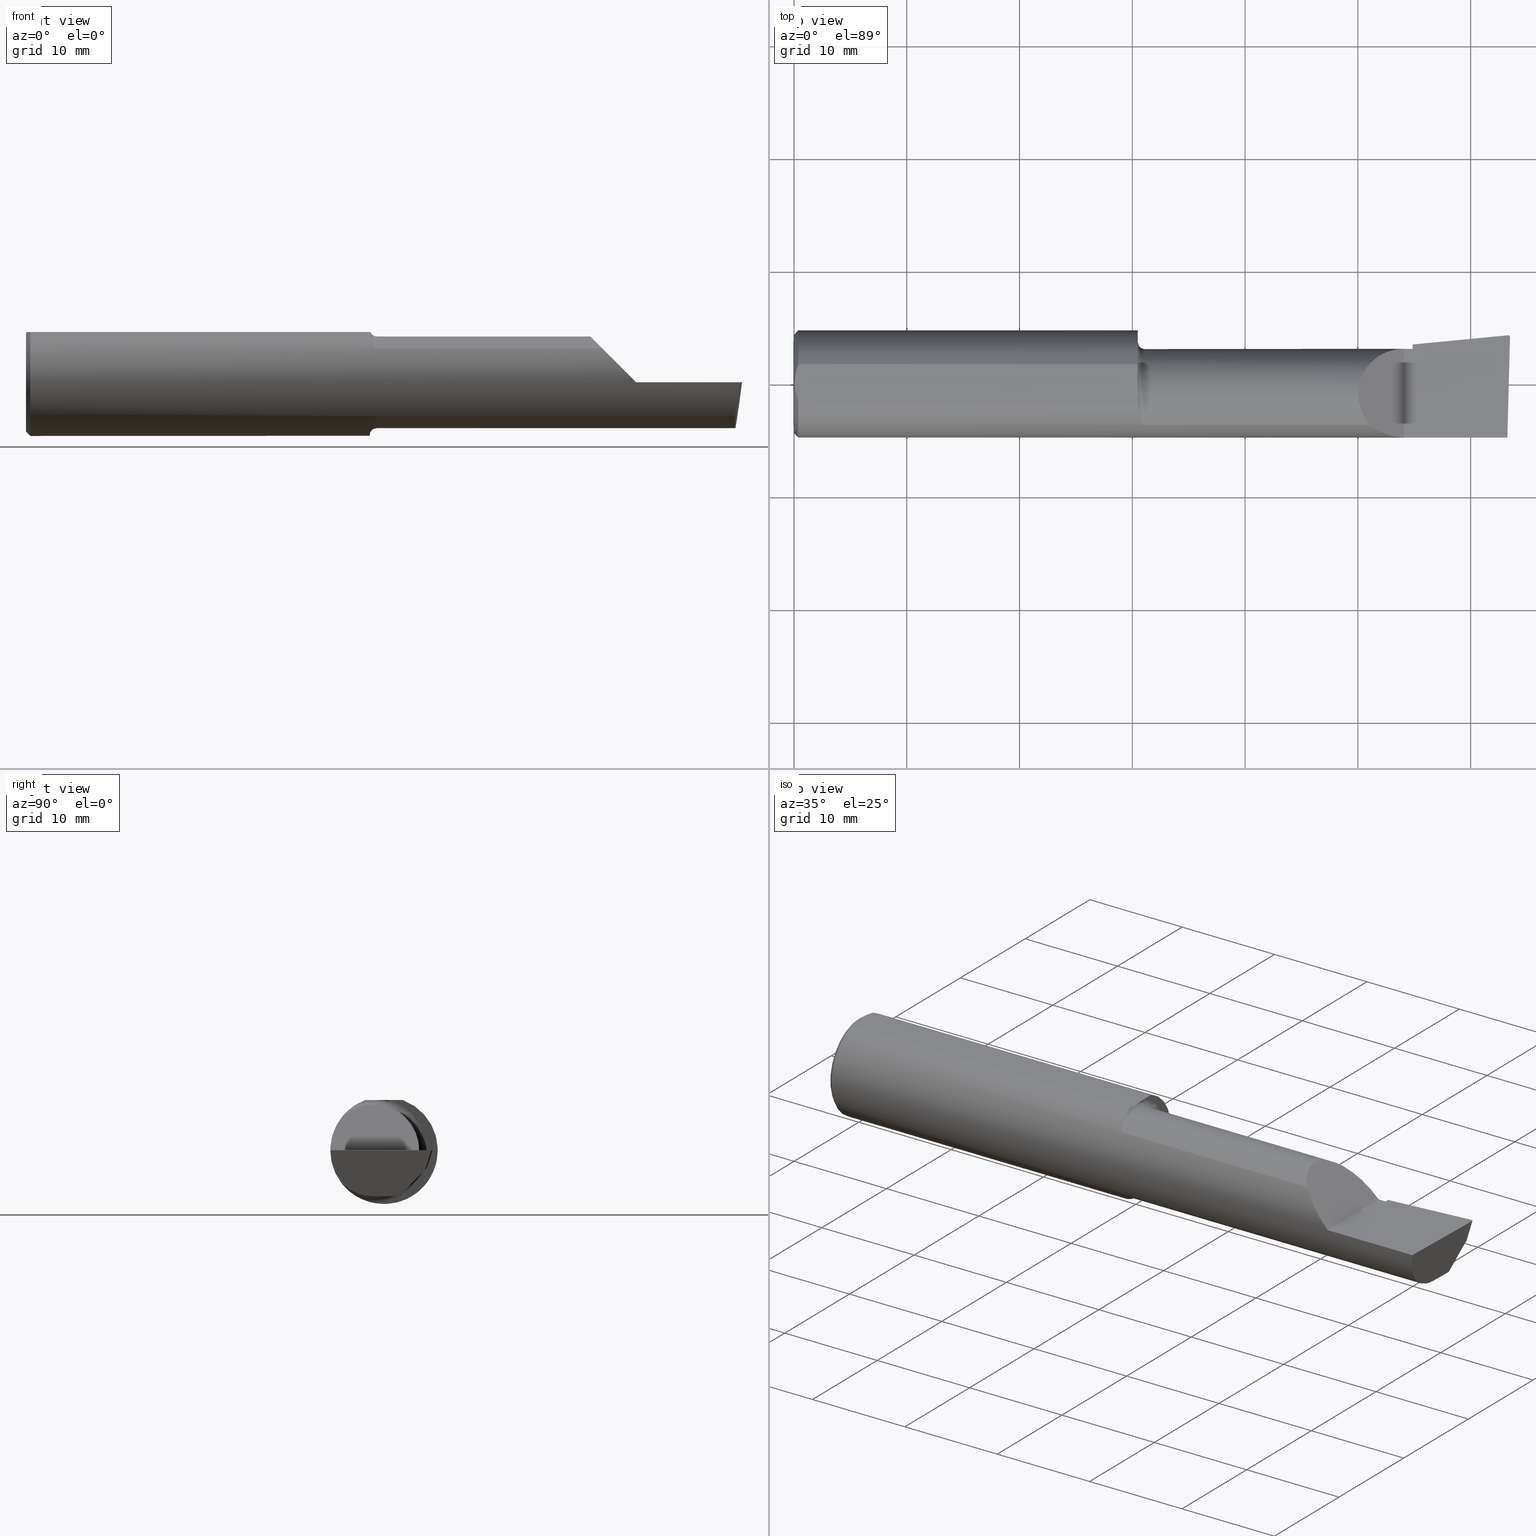
[diagram: canonical four-view strip — front | top / right | iso, engineering-drawing reading convention]
A machine part, canonical four-view strip (front | top / right | iso — engineering-drawing reading convention). The complete STEP part file that produces these views, byte-faithful:
ISO-10303-21;
HEADER;
FILE_DESCRIPTION (( 'STEP AP203' ),
    '1' );
FILE_NAME ('213672-B3601250R.STEP',
    '2024-04-16T17:20:36',
    ( '' ),
    ( '' ),
    'SwSTEP 2.0',
    'SolidWorks 2022',
    '' );
FILE_SCHEMA (( 'CONFIG_CONTROL_DESIGN' ));
ENDSEC;

DATA;
#1 = EDGE_CURVE ( 'NONE', #541, #280, #533, .T. ) ;
#2 = CARTESIAN_POINT ( 'NONE',  ( 2.159999999999999698, 0.1010446066476776567, -0.07900565447499380278 ) ) ;
#3 = DIRECTION ( 'NONE',  ( 0.000000000000000000, -1.000000000000000000, 0.000000000000000000 ) ) ;
#4 = AXIS2_PLACEMENT_3D ( 'NONE', #205, #681, #511 ) ;
#5 = VECTOR ( 'NONE', #216, 39.37007874015748143 ) ;
#6 = PERSON_AND_ORGANIZATION_ROLE ( 'creator' ) ;
#7 = FACE_OUTER_BOUND ( 'NONE', #291, .T. ) ;
#8 = CARTESIAN_POINT ( 'NONE',  ( 0.01499999999999999424, 0.000000000000000000, 0.000000000000000000 ) ) ;
#9 = ADVANCED_FACE ( 'NONE', ( #642 ), #40, .F. ) ;
#10 = CARTESIAN_POINT ( 'NONE',  ( 0.3393181374772676895, -0.03739999999999998881, 2.916527262322785043E-16 ) ) ;
#11 = CARTESIAN_POINT ( 'NONE',  ( 2.160000000000000142, 0.1226499999999998980, 3.267291166268306182E-16 ) ) ;
#12 = PERSON ( 'UNSPECIFIED', 'UNSPECIFIED', 'UNSPECIFIED', ('UNSPECIFIED'), ('UNSPECIFIED'), ('UNSPECIFIED') ) ;
#13 =( BOUNDED_CURVE ( )  B_SPLINE_CURVE ( 3, ( #494, #444, #325, #123 ),
 .UNSPECIFIED., .F., .F. ) 
 B_SPLINE_CURVE_WITH_KNOTS ( ( 4, 4 ),
 ( 0.6791649766279336253, 1.360746882515128764 ),
 .UNSPECIFIED. ) 
 CURVE ( )  GEOMETRIC_REPRESENTATION_ITEM ( )  RATIONAL_B_SPLINE_CURVE ( ( 1.000000000000000000, 0.9616603987079552773, 0.9616603987079552773, 1.000000000000000000 ) ) 
 REPRESENTATION_ITEM ( '' )  );
#14 = PLANE ( 'NONE',  #403 ) ;
#15 = DIRECTION ( 'NONE',  ( -1.000000000000000000, -0.000000000000000000, -0.000000000000000000 ) ) ;
#16 = ADVANCED_FACE ( 'NONE', ( #374 ), #106, .T. ) ;
#17 = AXIS2_PLACEMENT_3D ( 'NONE', #524, #519, #677 ) ;
#18 = VECTOR ( 'NONE', #548, 39.37007874015748143 ) ;
#19 = AXIS2_PLACEMENT_3D ( 'NONE', #428, #381, #165 ) ;
#20 = CC_DESIGN_SECURITY_CLASSIFICATION ( #90, ( #33 ) ) ;
#21 = CARTESIAN_POINT ( 'NONE',  ( 1.967758842172328881, 0.1226499999999998702, 0.1622411578276697630 ) ) ;
#22 = EDGE_LOOP ( 'NONE', ( #425, #321, #295, #310 ) ) ;
#23 = CC_DESIGN_DATE_AND_TIME_ASSIGNMENT ( #94, #621, ( #90 ) ) ;
#24 = PLANE ( 'NONE',  #367 ) ;
#25 = ORIENTED_EDGE ( 'NONE', *, *, #516, .T. ) ;
#26 = EDGE_CURVE ( 'NONE', #183, #626, #426, .T. ) ;
#27 = CARTESIAN_POINT ( 'NONE',  ( 0.003000000000000169632, 0.01127363201155560934, 0.1753499999999999781 ) ) ;
#28 = APPROVAL_ROLE ( '' ) ;
#29 = VERTEX_POINT ( 'NONE', #579 ) ;
#30 = AXIS2_PLACEMENT_3D ( 'NONE', #535, #111, #315 ) ;
#31 = VECTOR ( 'NONE', #477, 39.37007874015748143 ) ;
#32 = LINE ( 'NONE', #461, #99 ) ;
#33 = PRODUCT_DEFINITION_FORMATION_WITH_SPECIFIED_SOURCE ( 'ANY', '', #431, .NOT_KNOWN. ) ;
#34 = VERTEX_POINT ( 'NONE', #153 ) ;
#35 = ADVANCED_FACE ( 'NONE', ( #525 ), #475, .F. ) ;
#36 = DIRECTION ( 'NONE',  ( 0.7071067811865390240, 0.000000000000000000, -0.7071067811865560104 ) ) ;
#37 = COORDINATED_UNIVERSAL_TIME_OFFSET ( 8, 0, .BEHIND. ) ;
#38 = EDGE_LOOP ( 'NONE', ( #243, #239, #217, #499 ) ) ;
#39 = DIRECTION ( 'NONE',  ( -0.1240019227988109624, -0.3022330132596584562, -0.9451342385281493730 ) ) ;
#40 = PLANE ( 'NONE',  #501 ) ;
#41 = DIRECTION ( 'NONE',  ( -0.9953961983671800740, -0.09584575252021028391, 0.000000000000000000 ) ) ;
#42 = AXIS2_PLACEMENT_3D ( 'NONE', #389, #230, #398 ) ;
#43 = APPROVAL_PERSON_ORGANIZATION ( #410, #347, #28 ) ;
#44 = ORIENTED_EDGE ( 'NONE', *, *, #110, .F. ) ;
#45 = LINE ( 'NONE', #192, #651 ) ;
#46 = ORIENTED_EDGE ( 'NONE', *, *, #382, .F. ) ;
#47 = DIRECTION ( 'NONE',  ( -1.000000000000000000, -0.000000000000000000, -0.000000000000000000 ) ) ;
#48 = EDGE_CURVE ( 'NONE', #73, #452, #396, .T. ) ;
#49 = DIRECTION ( 'NONE',  ( -1.000000000000000000, 6.829619984160658046E-18, 0.000000000000000000 ) ) ;
#50 = ORIENTED_EDGE ( 'NONE', *, *, #48, .T. ) ;
#51 = CARTESIAN_POINT ( 'NONE',  ( 2.492483720199151431, 0.1538199878950227972, -0.05760614975163411838 ) ) ;
#52 = LINE ( 'NONE', #584, #609 ) ;
#53 = ORIENTED_EDGE ( 'NONE', *, *, #359, .T. ) ;
#54 = CARTESIAN_POINT ( 'NONE',  ( 1.213610562096349099, -0.1338335382286872655, 0.1311728947444862903 ) ) ;
#55 = DIRECTION ( 'NONE',  ( -6.829619984160658046E-18, -1.000000000000000000, 1.438723400918613551E-16 ) ) ;
#56 = CARTESIAN_POINT ( 'NONE',  ( 0.01499999999999997863, -0.06597272163553657975, 0.1753499999999999781 ) ) ;
#57 = ORIENTED_EDGE ( 'NONE', *, *, #698, .T. ) ;
#58 = CARTESIAN_POINT ( 'NONE',  ( 2.045676520271626941, -0.1728409665178085863, 0.08432347972837213324 ) ) ;
#59 = CARTESIAN_POINT ( 'NONE',  ( 1.201116380138691264, -0.06597272163553657975, 0.1753499999999999781 ) ) ;
#60 = VERTEX_POINT ( 'NONE', #119 ) ;
#61 = APPROVAL_DATE_TIME ( #490, #132 ) ;
#62 = ORIENTED_EDGE ( 'NONE', *, *, #664, .T. ) ;
#63 = LINE ( 'NONE', #437, #369 ) ;
#64 = VECTOR ( 'NONE', #41, 39.37007874015748854 ) ;
#65 = DIRECTION ( 'NONE',  ( 0.000000000000000000, 0.000000000000000000, -1.000000000000000000 ) ) ;
#66 = VECTOR ( 'NONE', #177, 39.37007874015748854 ) ;
#67 = LOCAL_TIME ( 10, 20, 36.00000000000000000, #37 ) ;
#68 = CARTESIAN_POINT ( 'NONE',  ( 2.159999999999999698, 0.04400172171466225357, -0.1378033461200730003 ) ) ;
#69 = CARTESIAN_POINT ( 'NONE',  ( 1.201049074448707232, -0.007621984361076244475, 0.1753499999999999781 ) ) ;
#70 = CARTESIAN_POINT ( 'NONE',  ( 2.129999999999999893, -0.2500000000000000555, 1.065442715258197396E-16 ) ) ;
#71 = EDGE_CURVE ( 'NONE', #29, #134, #333, .T. ) ;
#72 = CARTESIAN_POINT ( 'NONE',  ( 2.159999999999999698, -0.03739999999999999575, -0.1600499999999999701 ) ) ;
#73 = VERTEX_POINT ( 'NONE', #56 ) ;
#74 = CARTESIAN_POINT ( 'NONE',  ( 0.004115035183746292881, 0.02255629470626744487, 0.1753499999999999781 ) ) ;
#75 = VERTEX_POINT ( 'NONE', #224 ) ;
#76 = VECTOR ( 'NONE', #202, 39.37007874015748854 ) ;
#77 = B_SPLINE_CURVE_WITH_KNOTS ( 'NONE', 3,
 ( #340, #27, #74, #504, #559, #238 ),
 .UNSPECIFIED., .F., .F.,
 ( 4, 2, 4 ),
 ( 0.003480013901590607410, 0.004330767971208083697, 0.005181522040825559984 ),
 .UNSPECIFIED. ) ;
#78 = APPROVAL ( #566, 'UNSPECIFIED' ) ;
#79 = DIRECTION ( 'NONE',  ( -1.000000000000000000, 6.829619984160658046E-18, 0.000000000000000000 ) ) ;
#80 = VERTEX_POINT ( 'NONE', #283 ) ;
#81 = ADVANCED_FACE ( 'NONE', ( #551 ), #290, .F. ) ;
#82 = FACE_OUTER_BOUND ( 'NONE', #140, .T. ) ;
#83 = ORIENTED_EDGE ( 'NONE', *, *, #580, .T. ) ;
#84 = ADVANCED_BREP_SHAPE_REPRESENTATION ( '213672-B3601250R', ( #532, #560 ), #210 ) ;
#85 = CARTESIAN_POINT ( 'NONE',  ( 1.225000000000000089, -0.1454917112299475290, 0.1180346748349042629 ) ) ;
#86 = DATE_AND_TIME ( #193, #546 ) ;
#87 = VERTEX_POINT ( 'NONE', #650 ) ;
#88 = AXIS2_PLACEMENT_3D ( 'NONE', #219, #488, #65 ) ;
#89 = CARTESIAN_POINT ( 'NONE',  ( 1.201116380138691264, -0.06597272163553657975, 0.1753499999999999781 ) ) ;
#90 = SECURITY_CLASSIFICATION ( '', '', #150 ) ;
#91 = APPLICATION_CONTEXT ( 'configuration controlled 3d designs of mechanical parts and assemblies' ) ;
#92 = ORIENTED_EDGE ( 'NONE', *, *, #649, .F. ) ;
#93 = CARTESIAN_POINT ( 'NONE',  ( 2.129999999999999893, -0.2500000000000000555, 1.065442715258197396E-16 ) ) ;
#94 = DATE_AND_TIME ( #457, #147 ) ;
#95 = ORIENTED_EDGE ( 'NONE', *, *, #154, .F. ) ;
#96 = CARTESIAN_POINT ( 'NONE',  ( 1.199999999999999956, 0.02172596722253220328, 0.1753499999999999781 ) ) ;
#97 = ORIENTED_EDGE ( 'NONE', *, *, #126, .F. ) ;
#98 = CARTESIAN_POINT ( 'NONE',  ( 2.485034660857425415, 0.1507803188501191660, -0.05999999999999999084 ) ) ;
#99 = VECTOR ( 'NONE', #409, 39.37007874015748143 ) ;
#100 = COORDINATED_UNIVERSAL_TIME_OFFSET ( 8, 0, .BEHIND. ) ;
#101 = CC_DESIGN_APPROVAL ( #132, ( #252 ) ) ;
#102 = CARTESIAN_POINT ( 'NONE',  ( 1.217060058352115837, -0.1401415676386940923, -0.1243666343873851554 ) ) ;
#103 = ADVANCED_FACE ( 'NONE', ( #485 ), #572, .F. ) ;
#104 = CARTESIAN_POINT ( 'NONE',  ( 2.485635073714544951, 0.1507954141789410452, -0.06004403198038569395 ) ) ;
#105 = LINE ( 'NONE', #648, #5 ) ;
#106 = CYLINDRICAL_SURFACE ( 'NONE', #489, 0.1873499999999999888 ) ;
#107 = LINE ( 'NONE', #51, #157 ) ;
#108 = FACE_OUTER_BOUND ( 'NONE', #22, .T. ) ;
#109 = CARTESIAN_POINT ( 'NONE',  ( 0.000000000000000000, 0.000000000000000000, 0.000000000000000000 ) ) ;
#110 = EDGE_CURVE ( 'NONE', #553, #614, #175, .T. ) ;
#111 = DIRECTION ( 'NONE',  ( -1.000000000000000000, -0.000000000000000000, -0.000000000000000000 ) ) ;
#112 = CARTESIAN_POINT ( 'NONE',  ( 1.199999999999999956, 0.2373500000000000332, 0.1753499999999999504 ) ) ;
#113 = DIRECTION ( 'NONE',  ( 1.000000000000000000, -6.829619984160658046E-18, 0.000000000000000000 ) ) ;
#114 = LOCAL_TIME ( 10, 20, 36.00000000000000000, #387 ) ;
#115 = CARTESIAN_POINT ( 'NONE',  ( 0.000000000000000000, -0.03739999999999998881, 0.000000000000000000 ) ) ;
#116 = CARTESIAN_POINT ( 'NONE',  ( 1.201446793517542799, -0.01487494471388408138, 0.1753499999999999781 ) ) ;
#117 = ORIENTED_EDGE ( 'NONE', *, *, #248, .F. ) ;
#118 = FACE_OUTER_BOUND ( 'NONE', #430, .T. ) ;
#119 = CARTESIAN_POINT ( 'NONE',  ( 2.490625440078220176, -0.1873499999999999888, 6.926778495256883227E-17 ) ) ;
#120 = VERTEX_POINT ( 'NONE', #285 ) ;
#121 = PERSON_AND_ORGANIZATION ( #12, #171 ) ;
#122 = FACE_OUTER_BOUND ( 'NONE', #697, .T. ) ;
#123 = CARTESIAN_POINT ( 'NONE',  ( 2.490625440078220176, -0.1873499999999999888, 6.926778495256883227E-17 ) ) ;
#124 = AXIS2_PLACEMENT_3D ( 'NONE', #332, #492, #542 ) ;
#125 = EDGE_LOOP ( 'NONE', ( #549, #468, #57, #562, #342, #92, #331, #334, #95, #442, #655, #232 ) ) ;
#126 = EDGE_CURVE ( 'NONE', #544, #60, #13, .T. ) ;
#127 = CARTESIAN_POINT ( 'NONE',  ( 2.509953961983671267, 0.1716084575252020683, -6.829619984160658046E-17 ) ) ;
#128 = CARTESIAN_POINT ( 'NONE',  ( 0.004093196532652216939, -0.02240707710020816909, 0.1753499999999999504 ) ) ;
#129 = APPLICATION_CONTEXT ( 'configuration controlled 3d designs of mechanical parts and assemblies' ) ;
#130 = EDGE_CURVE ( 'NONE', #646, #249, #338, .T. ) ;
#131 = CARTESIAN_POINT ( 'NONE',  ( 2.159999999999999698, 0.1346188438362105888, -0.01072093908174519793 ) ) ;
#132 = APPROVAL ( #335, 'UNSPECIFIED' ) ;
#133 = CARTESIAN_POINT ( 'NONE',  ( 2.493310817358640463, 0.1699961668063687814, 6.829023555897996294E-17 ) ) ;
#134 = VERTEX_POINT ( 'NONE', #11 ) ;
#135 = CIRCLE ( 'NONE', #264, 0.1600499999999998868 ) ;
#136 = CARTESIAN_POINT ( 'NONE',  ( 0.003000000000000218638, 2.334609556160449697E-17, 0.1753499999999999781 ) ) ;
#137 = ORIENTED_EDGE ( 'NONE', *, *, #552, .T. ) ;
#138 = DIRECTION ( 'NONE',  ( -0.1240019227988109762, -0.3022330132596585117, -0.9451342385281494840 ) ) ;
#139 = APPROVAL_STATUS ( 'not_yet_approved' ) ;
#140 = EDGE_LOOP ( 'NONE', ( #237, #225, #663, #682, #462 ) ) ;
#141 = DIMENSIONAL_EXPONENTS ( 1.000000000000000000, 0.000000000000000000, 0.000000000000000000, 0.000000000000000000, 0.000000000000000000, 0.000000000000000000, 0.000000000000000000 ) ;
#142 = UNCERTAINTY_MEASURE_WITH_UNIT (LENGTH_MEASURE( 1.000000000000000082E-05 ), #704, 'distance_accuracy_value', 'NONE');
#143 = FACE_OUTER_BOUND ( 'NONE', #302, .T. ) ;
#144 = EDGE_LOOP ( 'NONE', ( #386, #604, #137 ) ) ;
#145 = EDGE_CURVE ( 'NONE', #134, #380, #652, .T. ) ;
#146 = FACE_OUTER_BOUND ( 'NONE', #172, .T. ) ;
#147 = LOCAL_TIME ( 10, 20, 36.00000000000000000, #625 ) ;
#148 = VERTEX_POINT ( 'NONE', #670 ) ;
#149 = CARTESIAN_POINT ( 'NONE',  ( 2.463713815698250986, 0.09117502322008112781, -0.2251465779161770653 ) ) ;
#150 = SECURITY_CLASSIFICATION_LEVEL ( 'unclassified' ) ;
#151 = CARTESIAN_POINT ( 'NONE',  ( 1.223475335450381118, -0.1454917112299472515, -0.1180346748349045405 ) ) ;
#152 = LINE ( 'NONE', #198, #500 ) ;
#153 = CARTESIAN_POINT ( 'NONE',  ( 2.499806390372743881, 0.1632563466314176925, 6.833281667419290873E-17 ) ) ;
#154 = EDGE_CURVE ( 'NONE', #120, #80, #378, .T. ) ;
#155 = VECTOR ( 'NONE', #253, 39.37007874015748143 ) ;
#156 = DIRECTION ( 'NONE',  ( 1.000000000000000000, 0.000000000000000000, 0.000000000000000000 ) ) ;
#157 = VECTOR ( 'NONE', #483, 39.37007874015748854 ) ;
#158 = CARTESIAN_POINT ( 'NONE',  ( 2.511712141217646632, 0.1533490680423130470, -0.05999999999999999084 ) ) ;
#159 = CARTESIAN_POINT ( 'NONE',  ( 1.199999999999999956, -0.03015080213903810827, -0.1849079544810676157 ) ) ;
#160 = CARTESIAN_POINT ( 'NONE',  ( 1.217580983404113137, -0.1407350872998852642, 0.1236837232298108324 ) ) ;
#161 = LINE ( 'NONE', #112, #303 ) ;
#162 = DIRECTION ( 'NONE',  ( 0.1219104985251759643, 0.000000000000000000, 0.9925410975618808029 ) ) ;
#163 =( BOUNDED_CURVE ( )  B_SPLINE_CURVE ( 3, ( #618, #555, #672, #610 ),
 .UNSPECIFIED., .F., .F. ) 
 B_SPLINE_CURVE_WITH_KNOTS ( ( 4, 4 ),
 ( 3.064097098354606974, 3.156599629463129109 ),
 .UNSPECIFIED. ) 
 CURVE ( )  GEOMETRIC_REPRESENTATION_ITEM ( )  RATIONAL_B_SPLINE_CURVE ( ( 1.000000000000000000, 0.9992870672494019724, 0.9992870672494019724, 1.000000000000000000 ) ) 
 REPRESENTATION_ITEM ( '' )  );
#164 = CARTESIAN_POINT ( 'NONE',  ( 3.377502344341257155E-32, -0.1873499999999999610, 3.267291166268304703E-16 ) ) ;
#165 = DIRECTION ( 'NONE',  ( 0.000000000000000000, 0.9524855432518806175, -0.3045837978228157494 ) ) ;
#166 = ORIENTED_EDGE ( 'NONE', *, *, #248, .T. ) ;
#167 = ORIENTED_EDGE ( 'NONE', *, *, #598, .T. ) ;
#168 = FACE_OUTER_BOUND ( 'NONE', #305, .T. ) ;
#169 = CLOSED_SHELL ( 'NONE', ( #585, #349, #306, #603, #267, #16, #255, #35, #429, #81, #465, #103, #513, #344, #404, #287, #421, #9, #329 ) ) ;
#170 = DIRECTION ( 'NONE',  ( -1.000000000000000000, 6.829619984160658046E-18, -0.000000000000000000 ) ) ;
#171 = ORGANIZATION ( 'UNSPECIFIED', 'UNSPECIFIED', '' ) ;
#172 = EDGE_LOOP ( 'NONE', ( #622, #413, #631, #586 ) ) ;
#173 = CARTESIAN_POINT ( 'NONE',  ( 2.473833329693931660, -0.07789060880782676388, -0.1600499999999998868 ) ) ;
#174 = CARTESIAN_POINT ( 'NONE',  ( 1.201790586316525022, -0.05136925160306193144, 0.1753500000000000614 ) ) ;
#175 = B_SPLINE_CURVE_WITH_KNOTS ( 'NONE', 3,
 ( #596, #543, #328, #69, #116, #236, #602, #174, #540, #59 ),
 .UNSPECIFIED., .F., .F.,
 ( 4, 2, 2, 2, 4 ),
 ( 0.01227444304810800316, 0.01283060897602173595, 0.01338677490393546873, 0.01394294083184920152, 0.01449910675976293431 ),
 .UNSPECIFIED. ) ;
#176 = CALENDAR_DATE ( 2024, 16, 4 ) ;
#177 = DIRECTION ( 'NONE',  ( -2.005228508682078977E-18, -0.2936076258024064023, -0.9559260233253794592 ) ) ;
#178 = CARTESIAN_POINT ( 'NONE',  ( 0.01499999999999997863, -0.06597272163553657975, 0.1753499999999999781 ) ) ;
#179 = EDGE_CURVE ( 'NONE', #445, #352, #414, .T. ) ;
#180 = ORIENTED_EDGE ( 'NONE', *, *, #206, .F. ) ;
#181 = DIRECTION ( 'NONE',  ( 1.000000000000000000, 0.000000000000000000, 0.000000000000000000 ) ) ;
#182 = DIRECTION ( 'NONE',  ( 0.000000000000000000, -1.000000000000000000, 0.000000000000000000 ) ) ;
#183 = VERTEX_POINT ( 'NONE', #662 ) ;
#184 = CARTESIAN_POINT ( 'NONE',  ( 0.01499999999999999424, 0.000000000000000000, 0.000000000000000000 ) ) ;
#185 = CARTESIAN_POINT ( 'NONE',  ( 0.000000000000000000, 0.000000000000000000, 0.000000000000000000 ) ) ;
#186 = CARTESIAN_POINT ( 'NONE',  ( 1.902393788885675230, -0.02584108761840225171, 0.2276062111143220545 ) ) ;
#187 = ORIENTED_EDGE ( 'NONE', *, *, #356, .T. ) ;
#188 = DIRECTION ( 'NONE',  ( 0.000000000000000000, 0.000000000000000000, -1.000000000000000000 ) ) ;
#189 = ORIENTED_EDGE ( 'NONE', *, *, #71, .T. ) ;
#190 = VECTOR ( 'NONE', #526, 39.37007874015748854 ) ;
#191 = APPROVAL_PERSON_ORGANIZATION ( #121, #132, #439 ) ;
#192 = CARTESIAN_POINT ( 'NONE',  ( 2.159999999999999698, 0.1010446066476776567, -0.07900565447499380278 ) ) ;
#193 = CALENDAR_DATE ( 2024, 16, 4 ) ;
#194 = ORIENTED_EDGE ( 'NONE', *, *, #71, .F. ) ;
#195 = CARTESIAN_POINT ( 'NONE',  ( 2.159999999999999698, -0.2500000000000000555, 1.034430765243970680E-16 ) ) ;
#196 = ORIENTED_EDGE ( 'NONE', *, *, #395, .T. ) ;
#197 = EDGE_CURVE ( 'NONE', #553, #626, #558, .T. ) ;
#198 = CARTESIAN_POINT ( 'NONE',  ( 0.01499999999999999424, 0.000000000000000000, -0.1873499999999999888 ) ) ;
#199 = PERSON_AND_ORGANIZATION_ROLE ( 'creator' ) ;
#200 = ORIENTED_EDGE ( 'NONE', *, *, #206, .T. ) ;
#201 = AXIS2_PLACEMENT_3D ( 'NONE', #466, #412, #250 ) ;
#202 = DIRECTION ( 'NONE',  ( 0.1240019227988109901, 0.3022330132596584562, 0.9451342385281493730 ) ) ;
#203 = PERSON_AND_ORGANIZATION ( #12, #171 ) ;
#204 = ORIENTED_EDGE ( 'NONE', *, *, #276, .F. ) ;
#205 = CARTESIAN_POINT ( 'NONE',  ( 0.01499999999999999424, 0.000000000000000000, 0.000000000000000000 ) ) ;
#206 = EDGE_CURVE ( 'NONE', #496, #646, #312, .T. ) ;
#207 = DIRECTION ( 'NONE',  ( 1.000000000000000000, -6.829619984160658046E-18, 0.000000000000000000 ) ) ;
#208 =( NAMED_UNIT ( * ) PLANE_ANGLE_UNIT ( ) SI_UNIT ( $, .RADIAN. ) );
#209 = CARTESIAN_POINT ( 'NONE',  ( 1.199999999999999956, -0.04186526254461789970, -0.1829978128711759744 ) ) ;
#210 =( GEOMETRIC_REPRESENTATION_CONTEXT ( 3 ) GLOBAL_UNCERTAINTY_ASSIGNED_CONTEXT ( ( #142 ) ) GLOBAL_UNIT_ASSIGNED_CONTEXT ( ( #704, #208, #326 ) ) REPRESENTATION_CONTEXT ( 'NONE', 'WORKASPACE' ) );
#211 = PERSON_AND_ORGANIZATION_ROLE ( 'design_owner' ) ;
#212 = EDGE_CURVE ( 'NONE', #496, #380, #135, .T. ) ;
#213 = VECTOR ( 'NONE', #393, 39.37007874015748143 ) ;
#214 = CARTESIAN_POINT ( 'NONE',  ( 1.692500000000000115, -0.1454917112299469462, 0.1180346748349048319 ) ) ;
#215 = CARTESIAN_POINT ( 'NONE',  ( 1.218558384071252165, -0.1420205060553831056, 0.1222022583412207680 ) ) ;
#216 = DIRECTION ( 'NONE',  ( -4.755568962650852027E-18, -0.6963153109074923242, -0.7177360153954950306 ) ) ;
#217 = ORIENTED_EDGE ( 'NONE', *, *, #300, .T. ) ;
#218 = LINE ( 'NONE', #2, #31 ) ;
#219 = CARTESIAN_POINT ( 'NONE',  ( 0.000000000000000000, 0.000000000000000000, 0.000000000000000000 ) ) ;
#220 = ORIENTED_EDGE ( 'NONE', *, *, #657, .F. ) ;
#221 = CARTESIAN_POINT ( 'NONE',  ( 2.490474961019615296, 0.1405126185684960616, -0.07112352112763070666 ) ) ;
#222 = ORIENTED_EDGE ( 'NONE', *, *, #523, .T. ) ;
#223 = PLANE ( 'NONE',  #668 ) ;
#224 = CARTESIAN_POINT ( 'NONE',  ( 2.129999999999999893, -0.1873499999999999888, 1.065442715258197396E-16 ) ) ;
#225 = ORIENTED_EDGE ( 'NONE', *, *, #474, .T. ) ;
#226 = APPLICATION_PROTOCOL_DEFINITION ( 'international standard', 'config_control_design', 1994, #129 ) ;
#227 = CARTESIAN_POINT ( 'NONE',  ( 2.159999999999999698, 0.02241901528670511845, -0.1600499999999999701 ) ) ;
#228 = EDGE_CURVE ( 'NONE', #544, #148, #234, .T. ) ;
#229 = DIRECTION ( 'NONE',  ( -1.000000000000000000, -0.000000000000000000, -0.000000000000000000 ) ) ;
#230 = DIRECTION ( 'NONE',  ( -1.000000000000000000, 6.829619984160658046E-18, -0.000000000000000000 ) ) ;
#231 = CC_DESIGN_PERSON_AND_ORGANIZATION_ASSIGNMENT ( #203, #199, ( #33 ) ) ;
#232 = ORIENTED_EDGE ( 'NONE', *, *, #26, .F. ) ;
#233 = EDGE_CURVE ( 'NONE', #34, #520, #568, .T. ) ;
#234 =( BOUNDED_CURVE ( )  B_SPLINE_CURVE ( 3, ( #384, #324, #173, #375 ),
 .UNSPECIFIED., .F., .F. ) 
 B_SPLINE_CURVE_WITH_KNOTS ( ( 4, 4 ),
 ( 5.751779107031150140, 6.493234751459354470 ),
 .UNSPECIFIED. ) 
 CURVE ( )  GEOMETRIC_REPRESENTATION_ITEM ( )  RATIONAL_B_SPLINE_CURVE ( ( 1.000000000000000000, 0.9547092712975349116, 0.9547092712975349116, 1.000000000000000000 ) ) 
 REPRESENTATION_ITEM ( '' )  );
#235 = VECTOR ( 'NONE', #606, 39.37007874015748143 ) ;
#236 = CARTESIAN_POINT ( 'NONE',  ( 1.201936435452952034, -0.02946557294850779898, 0.1753499999999999781 ) ) ;
#237 = ORIENTED_EDGE ( 'NONE', *, *, #702, .F. ) ;
#238 = CARTESIAN_POINT ( 'NONE',  ( 0.01499999999999999424, 0.06597272163553663527, 0.1753499999999999781 ) ) ;
#239 = ORIENTED_EDGE ( 'NONE', *, *, #657, .T. ) ;
#240 = CARTESIAN_POINT ( 'NONE',  ( 2.011965325165093077, -0.1454917112299461968, 0.1180346748349056646 ) ) ;
#241 = ORIENTED_EDGE ( 'NONE', *, *, #179, .T. ) ;
#242 = DIRECTION ( 'NONE',  ( -6.829619984160658046E-18, -1.000000000000000000, 0.000000000000000000 ) ) ;
#243 = ORIENTED_EDGE ( 'NONE', *, *, #516, .F. ) ;
#244 = VECTOR ( 'NONE', #473, 39.37007874015748143 ) ;
#245 = AXIS2_PLACEMENT_3D ( 'NONE', #158, #370, #527 ) ;
#246 = CARTESIAN_POINT ( 'NONE',  ( 2.485169328570948633, 0.1511085478640591673, -0.05897357182854635893 ) ) ;
#247 = PERSON_AND_ORGANIZATION_ROLE ( 'classification_officer' ) ;
#248 = EDGE_CURVE ( 'NONE', #339, #553, #161, .T. ) ;
#249 = VERTEX_POINT ( 'NONE', #227 ) ;
#250 = DIRECTION ( 'NONE',  ( 0.000000000000000000, -1.000000000000000000, 0.000000000000000000 ) ) ;
#251 = ORIENTED_EDGE ( 'NONE', *, *, #569, .T. ) ;
#252 = PRODUCT_DEFINITION ( 'UNKNOWN', '', #33, #563 ) ;
#253 = DIRECTION ( 'NONE',  ( -0.000000000000000000, 1.000000000000000000, -0.000000000000000000 ) ) ;
#254 = CARTESIAN_POINT ( 'NONE',  ( 1.205627379275792554, -0.1060494212093237437, -0.1548887329701210402 ) ) ;
#255 = ADVANCED_FACE ( 'NONE', ( #118 ), #223, .F. ) ;
#256 = LINE ( 'NONE', #690, #469 ) ;
#257 = LOCAL_TIME ( 10, 20, 36.00000000000000000, #659 ) ;
#258 = ORIENTED_EDGE ( 'NONE', *, *, #354, .T. ) ;
#259 = CARTESIAN_POINT ( 'NONE',  ( 1.222867149423749522, -0.1451640434845494765, 0.1184394021563237587 ) ) ;
#260 = CC_DESIGN_DATE_AND_TIME_ASSIGNMENT ( #575, #692, ( #252 ) ) ;
#261 = DIRECTION ( 'NONE',  ( -1.000000000000000000, -0.000000000000000000, -0.000000000000000000 ) ) ;
#262 = DIRECTION ( 'NONE',  ( -6.829619984160658046E-18, -1.000000000000000000, 0.000000000000000000 ) ) ;
#263 = ORIENTED_EDGE ( 'NONE', *, *, #130, .F. ) ;
#264 = AXIS2_PLACEMENT_3D ( 'NONE', #611, #113, #440 ) ;
#265 = CARTESIAN_POINT ( 'NONE',  ( 2.011965325165093077, -0.1454917112299461968, 0.1180346748349056646 ) ) ;
#266 = DIRECTION ( 'NONE',  ( 0.000000000000000000, 0.000000000000000000, 1.000000000000000000 ) ) ;
#267 = ADVANCED_FACE ( 'NONE', ( #327 ), #705, .F. ) ;
#268 = CARTESIAN_POINT ( 'NONE',  ( 1.220462485058697810, -0.1437494271365429566, 0.1201537477313800728 ) ) ;
#269 = DIRECTION ( 'NONE',  ( 0.000000000000000000, -1.438723400918613551E-16, -1.000000000000000000 ) ) ;
#270 = EDGE_CURVE ( 'NONE', #597, #380, #105, .T. ) ;
#271 = DIRECTION ( 'NONE',  ( -1.000000000000000000, 0.000000000000000000, 1.033731667140896077E-16 ) ) ;
#272 = CARTESIAN_POINT ( 'NONE',  ( 1.202180260693407776, -0.08231188685414682349, 0.1692026421515573920 ) ) ;
#273 = DIRECTION ( 'NONE',  ( -1.000000000000000000, 6.829619984160658046E-18, -0.000000000000000000 ) ) ;
#274 = CARTESIAN_POINT ( 'NONE',  ( 2.160000000000000142, -0.03740000000000000269, 0.000000000000000000 ) ) ;
#275 = ORIENTED_EDGE ( 'NONE', *, *, #48, .F. ) ;
#276 = EDGE_CURVE ( 'NONE', #60, #34, #63, .T. ) ;
#277 = AXIS2_PLACEMENT_3D ( 'NONE', #184, #181, #615 ) ;
#278 = PERSON_AND_ORGANIZATION ( #12, #171 ) ;
#279 =( BOUNDED_CURVE ( )  B_SPLINE_CURVE ( 3, ( #443, #296, #284, #506 ),
 .UNSPECIFIED., .F., .F. ) 
 B_SPLINE_CURVE_WITH_KNOTS ( ( 4, 4 ),
 ( 3.156599629463129109, 4.715023529952401482 ),
 .UNSPECIFIED. ) 
 CURVE ( )  GEOMETRIC_REPRESENTATION_ITEM ( )  RATIONAL_B_SPLINE_CURVE ( ( 1.000000000000000000, 0.8076450242550375913, 0.8076450242550375913, 1.000000000000000000 ) ) 
 REPRESENTATION_ITEM ( '' )  );
#280 = VERTEX_POINT ( 'NONE', #265 ) ;
#281 = CARTESIAN_POINT ( 'NONE',  ( 2.493512870449277496, 0.1699961668063687814, 3.414809992080329023E-17 ) ) ;
#282 = AXIS2_PLACEMENT_3D ( 'NONE', #274, #448, #3 ) ;
#283 = CARTESIAN_POINT ( 'NONE',  ( 0.01499999999999999424, 0.000000000000000000, -0.1873499999999999888 ) ) ;
#284 = CARTESIAN_POINT ( 'NONE',  ( 2.491359894127285646, 0.1463750095474666002, -0.06516861643763510736 ) ) ;
#285 = CARTESIAN_POINT ( 'NONE',  ( 0.01499999999999999424, 0.06597272163553663527, 0.1753499999999999781 ) ) ;
#286 = ORIENTED_EDGE ( 'NONE', *, *, #228, .F. ) ;
#287 = ADVANCED_FACE ( 'NONE', ( #7 ), #592, .T. ) ;
#288 = EDGE_CURVE ( 'NONE', #380, #496, #218, .T. ) ;
#289 = DIRECTION ( 'NONE',  ( 1.000000000000000000, 0.000000000000000000, 0.000000000000000000 ) ) ;
#290 = PLANE ( 'NONE',  #88 ) ;
#291 = EDGE_LOOP ( 'NONE', ( #346, #196, #53, #416, #25, #371, #348, #619 ) ) ;
#292 = CARTESIAN_POINT ( 'NONE',  ( 2.159999999999999698, 0.1379117236128366841, 0.000000000000000000 ) ) ;
#293 = AXIS2_PLACEMENT_3D ( 'NONE', #149, #138, #456 ) ;
#294 = EDGE_LOOP ( 'NONE', ( #222, #166, #405 ) ) ;
#295 = ORIENTED_EDGE ( 'NONE', *, *, #270, .T. ) ;
#296 = CARTESIAN_POINT ( 'NONE',  ( 2.489362363380600129, 0.1506189514202919688, -0.06059586115756859792 ) ) ;
#297 = ORIENTED_EDGE ( 'NONE', *, *, #591, .T. ) ;
#298 = CARTESIAN_POINT ( 'NONE',  ( 2.493108609909186590, 0.1699864346073978183, 6.831113838336315012E-17 ) ) ;
#299 = ORIENTED_EDGE ( 'NONE', *, *, #197, .F. ) ;
#300 = EDGE_CURVE ( 'NONE', #148, #646, #52, .T. ) ;
#301 = LINE ( 'NONE', #195, #557 ) ;
#302 = EDGE_LOOP ( 'NONE', ( #180, #567, #263 ) ) ;
#303 = VECTOR ( 'NONE', #55, 39.37007874015748143 ) ;
#304 = CARTESIAN_POINT ( 'NONE',  ( 1.199999999999999956, -0.03015080213903810827, -0.1849079544810676157 ) ) ;
#305 = EDGE_LOOP ( 'NONE', ( #286, #366, #675, #608, #576, #189, #514, #582, #200, #667 ) ) ;
#306 = ADVANCED_FACE ( 'NONE', ( #108 ), #316, .T. ) ;
#307 = DIRECTION ( 'NONE',  ( -0.1240019227988109901, -0.3022330132596584562, -0.9451342385281493730 ) ) ;
#308 = CARTESIAN_POINT ( 'NONE',  ( 1.211427394884100117, -0.1284293148232741044, -0.1365241029388003235 ) ) ;
#309 = CARTESIAN_POINT ( 'NONE',  ( 2.477223734188805704, -0.1454917112299469462, -0.1180346748349048319 ) ) ;
#310 = ORIENTED_EDGE ( 'NONE', *, *, #145, .F. ) ;
#311 = CONICAL_SURFACE ( 'NONE', #277, 0.1873499999999999888, 0.7853981633974602694 ) ;
#312 = CIRCLE ( 'NONE', #436, 0.1600499999999999146 ) ;
#313 = CARTESIAN_POINT ( 'NONE',  ( 2.159999999999999698, 0.1379117236128366841, 0.000000000000000000 ) ) ;
#314 = ORIENTED_EDGE ( 'NONE', *, *, #288, .T. ) ;
#315 = DIRECTION ( 'NONE',  ( 0.000000000000000000, 0.000000000000000000, 1.000000000000000000 ) ) ;
#316 = PLANE ( 'NONE',  #699 ) ;
#317 = DIRECTION ( 'NONE',  ( -1.033731667140896077E-16, 0.000000000000000000, -1.000000000000000000 ) ) ;
#318 = LINE ( 'NONE', #164, #637 ) ;
#319 = EDGE_CURVE ( 'NONE', #75, #280, #641, .T. ) ;
#320 = CARTESIAN_POINT ( 'NONE',  ( 2.086590019116435268, -0.1873500000000000165, 0.04340998088356443074 ) ) ;
#321 = ORIENTED_EDGE ( 'NONE', *, *, #382, .T. ) ;
#322 = LINE ( 'NONE', #379, #190 ) ;
#323 = EDGE_LOOP ( 'NONE', ( #241, #510 ) ) ;
#324 = CARTESIAN_POINT ( 'NONE',  ( 2.474646882977777018, -0.1156304438478841790, -0.1453804992321578726 ) ) ;
#325 = CARTESIAN_POINT ( 'NONE',  ( 2.485293537526796381, -0.1873500000000000443, -0.04340998088356401441 ) ) ;
#326 =( NAMED_UNIT ( * ) SI_UNIT ( $, .STERADIAN. ) SOLID_ANGLE_UNIT ( ) );
#327 = FACE_OUTER_BOUND ( 'NONE', #38, .T. ) ;
#328 = CARTESIAN_POINT ( 'NONE',  ( 1.200322286002908134, 0.007053356780979085430, 0.1753499999999999781 ) ) ;
#329 = ADVANCED_FACE ( 'NONE', ( #424 ), #701, .T. ) ;
#330 = ORIENTED_EDGE ( 'NONE', *, *, #612, .F. ) ;
#331 = ORIENTED_EDGE ( 'NONE', *, *, #643, .T. ) ;
#332 = CARTESIAN_POINT ( 'NONE',  ( 2.500000000000000000, -0.03739999999999999575, -0.1600499999999999701 ) ) ;
#333 = LINE ( 'NONE', #341, #213 ) ;
#334 = ORIENTED_EDGE ( 'NONE', *, *, #591, .F. ) ;
#335 = APPROVAL_STATUS ( 'not_yet_approved' ) ;
#336 = CIRCLE ( 'NONE', #30, 0.1723499999999996424 ) ;
#337 = CARTESIAN_POINT ( 'NONE',  ( 0.01499999999999999424, 2.294375778202566330E-17, 0.1873499999999999888 ) ) ;
#338 = LINE ( 'NONE', #72, #18 ) ;
#339 = VERTEX_POINT ( 'NONE', #433 ) ;
#340 = CARTESIAN_POINT ( 'NONE',  ( 0.003000000000000218638, 2.334609556160449697E-17, 0.1753499999999999781 ) ) ;
#341 = CARTESIAN_POINT ( 'NONE',  ( 1.093080678464946168E-18, 0.1226499999999998564, 3.267291166268304703E-16 ) ) ;
#342 = ORIENTED_EDGE ( 'NONE', *, *, #1, .F. ) ;
#343 = LINE ( 'NONE', #131, #66 ) ;
#344 = ADVANCED_FACE ( 'NONE', ( #168 ), #595, .T. ) ;
#345 = FACE_OUTER_BOUND ( 'NONE', #616, .T. ) ;
#346 = ORIENTED_EDGE ( 'NONE', *, *, #679, .F. ) ;
#347 = APPROVAL ( #139, 'UNSPECIFIED' ) ;
#348 = ORIENTED_EDGE ( 'NONE', *, *, #288, .F. ) ;
#349 = ADVANCED_FACE ( 'NONE', ( #82 ), #311, .T. ) ;
#350 = CARTESIAN_POINT ( 'NONE',  ( 2.463713815698250986, 0.09736617925121834882, -0.2271263726020253948 ) ) ;
#351 = SHAPE_DEFINITION_REPRESENTATION ( #493, #84 ) ;
#352 = VERTEX_POINT ( 'NONE', #392 ) ;
#353 = CARTESIAN_POINT ( 'NONE',  ( 2.500086462864342440, 0.1639389743774760932, 0.002134693520110994211 ) ) ;
#354 = EDGE_CURVE ( 'NONE', #520, #503, #671, .T. ) ;
#355 = APPROVAL_DATE_TIME ( #633, #347 ) ;
#356 = EDGE_CURVE ( 'NONE', #693, #503, #495, .T. ) ;
#357 = ORIENTED_EDGE ( 'NONE', *, *, #554, .T. ) ;
#358 = AXIS2_PLACEMENT_3D ( 'NONE', #574, #415, #628 ) ;
#359 = EDGE_CURVE ( 'NONE', #685, #680, #279, .T. ) ;
#360 = FACE_OUTER_BOUND ( 'NONE', #294, .T. ) ;
#361 = ORIENTED_EDGE ( 'NONE', *, *, #643, .F. ) ;
#362 = PLANE ( 'NONE',  #458 ) ;
#363 = APPROVAL_ROLE ( '' ) ;
#364 = CARTESIAN_POINT ( 'NONE',  ( 1.201697995486590953, -0.07541755249016975082, -0.1718998534213997120 ) ) ;
#365 = CYLINDRICAL_SURFACE ( 'NONE', #293, 0.006500000000000004038 ) ;
#366 = ORIENTED_EDGE ( 'NONE', *, *, #683, .T. ) ;
#367 = AXIS2_PLACEMENT_3D ( 'NONE', #70, #550, #661 ) ;
#368 = CIRCLE ( 'NONE', #4, 0.1873499999999999888 ) ;
#369 = VECTOR ( 'NONE', #656, 39.37007874015748854 ) ;
#370 = DIRECTION ( 'NONE',  ( -0.06894566448119622548, 0.7160281025913036723, -0.6946583704589932573 ) ) ;
#371 = ORIENTED_EDGE ( 'NONE', *, *, #623, .F. ) ;
#372 = EDGE_CURVE ( 'NONE', #452, #120, #77, .T. ) ;
#373 = CARTESIAN_POINT ( 'NONE',  ( 1.210055759795568120, -0.1247930883238201061, 0.1399914093379786284 ) ) ;
#374 = FACE_OUTER_BOUND ( 'NONE', #125, .T. ) ;
#375 = CARTESIAN_POINT ( 'NONE',  ( 2.474893613600459119, -0.03739999999999999575, -0.1600499999999999701 ) ) ;
#376 = CARTESIAN_POINT ( 'NONE',  ( 1.222144995725004124, -0.1448851833857937588, -0.1187833539262091731 ) ) ;
#377 = CONICAL_SURFACE ( 'NONE', #627, 0.1873499999999999888, 0.7853981633974602694 ) ;
#378 = CIRCLE ( 'NONE', #676, 0.1873499999999999888 ) ;
#379 = CARTESIAN_POINT ( 'NONE',  ( 2.474910817315458811, -0.03674301662998945978, -0.1600499999999999701 ) ) ;
#380 = VERTEX_POINT ( 'NONE', #397 ) ;
#381 = DIRECTION ( 'NONE',  ( -0.1240019227988109762, -0.3022330132596585117, -0.9451342385281494840 ) ) ;
#382 = EDGE_CURVE ( 'NONE', #693, #597, #343, .T. ) ;
#383 = CARTESIAN_POINT ( 'NONE',  ( 0.01128414053810044941, -0.05542038647445821781, 0.1753499999999999781 ) ) ;
#384 = CARTESIAN_POINT ( 'NONE',  ( 2.477223734188805704, -0.1454917112299469462, -0.1180346748349048319 ) ) ;
#385 = CARTESIAN_POINT ( 'NONE',  ( 0.003000000000000172667, -0.01126410975715121283, 0.1753500000000000059 ) ) ;
#386 = ORIENTED_EDGE ( 'NONE', *, *, #453, .F. ) ;
#387 = COORDINATED_UNIVERSAL_TIME_OFFSET ( 8, 0, .BEHIND. ) ;
#388 = CARTESIAN_POINT ( 'NONE',  ( 0.000000000000000000, 0.000000000000000000, -0.1723499999999996424 ) ) ;
#389 = CARTESIAN_POINT ( 'NONE',  ( 1.199999999999999956, -0.03739999999999999575, 0.000000000000000000 ) ) ;
#390 = ORIENTED_EDGE ( 'NONE', *, *, #630, .F. ) ;
#391 = ORIENTED_EDGE ( 'NONE', *, *, #372, .F. ) ;
#392 = CARTESIAN_POINT ( 'NONE',  ( 0.000000000000000000, 2.202527268266512578E-17, 0.1723499999999996424 ) ) ;
#393 = DIRECTION ( 'NONE',  ( 1.000000000000000000, -6.829619984160658046E-18, 0.000000000000000000 ) ) ;
#394 = ORIENTED_EDGE ( 'NONE', *, *, #474, .F. ) ;
#395 = EDGE_CURVE ( 'NONE', #507, #685, #163, .T. ) ;
#396 = B_SPLINE_CURVE_WITH_KNOTS ( 'NONE', 3,
 ( #178, #383, #434, #128, #385, #438 ),
 .UNSPECIFIED., .F., .F.,
 ( 4, 2, 4 ),
 ( 0.001779942938356815062, 0.002629978419973711019, 0.003480013901590607410 ),
 .UNSPECIFIED. ) ;
#397 = CARTESIAN_POINT ( 'NONE',  ( 2.159999999999999698, 0.1028057716897399221, -0.07719031082256687382 ) ) ;
#398 = DIRECTION ( 'NONE',  ( 0.000000000000000000, -1.000000000000000000, 0.000000000000000000 ) ) ;
#399 = ORIENTED_EDGE ( 'NONE', *, *, #698, .F. ) ;
#400 = PLANE ( 'NONE',  #570 ) ;
#401 = ORIENTED_EDGE ( 'NONE', *, *, #649, .T. ) ;
#402 = DIRECTION ( 'NONE',  ( 0.9953961983671787417, 0.09584575252022450864, -1.028972571603813720E-16 ) ) ;
#403 = AXIS2_PLACEMENT_3D ( 'NONE', #127, #547, #669 ) ;
#404 = ADVANCED_FACE ( 'NONE', ( #665 ), #14, .T. ) ;
#405 = ORIENTED_EDGE ( 'NONE', *, *, #197, .T. ) ;
#406 = DIRECTION ( 'NONE',  ( 6.829619984160658816E-18, 1.000000000000000000, -7.059994452165177242E-34 ) ) ;
#407 = PERSON_AND_ORGANIZATION ( #12, #171 ) ;
#408 = ORIENTED_EDGE ( 'NONE', *, *, #359, .F. ) ;
#409 = DIRECTION ( 'NONE',  ( -1.000000000000000000, -0.000000000000000000, -0.000000000000000000 ) ) ;
#410 = PERSON_AND_ORGANIZATION ( #12, #171 ) ;
#411 = EDGE_LOOP ( 'NONE', ( #673, #299, #455, #401, #83 ) ) ;
#412 = DIRECTION ( 'NONE',  ( -1.000000000000000000, 6.829619984160658046E-18, -0.000000000000000000 ) ) ;
#413 = ORIENTED_EDGE ( 'NONE', *, *, #528, .T. ) ;
#414 = CIRCLE ( 'NONE', #687, 0.1723499999999996424 ) ;
#415 = DIRECTION ( 'NONE',  ( 1.000000000000000000, -6.829619984160658046E-18, 0.000000000000000000 ) ) ;
#416 = ORIENTED_EDGE ( 'NONE', *, *, #664, .F. ) ;
#417 = DIRECTION ( 'NONE',  ( 1.000000000000000000, 0.000000000000000000, 0.000000000000000000 ) ) ;
#418 = CARTESIAN_POINT ( 'NONE',  ( 1.215943198097122480, -0.1383011673991935420, -0.1264147259943147195 ) ) ;
#419 = DIRECTION ( 'NONE',  ( 0.000000000000000000, 0.000000000000000000, 1.000000000000000000 ) ) ;
#420 = CARTESIAN_POINT ( 'NONE',  ( 2.500000000000000000, -0.2500000000000000555, 6.829619984160658046E-17 ) ) ;
#421 = ADVANCED_FACE ( 'NONE', ( #345 ), #400, .F. ) ;
#422 = VECTOR ( 'NONE', #207, 39.37007874015748143 ) ;
#423 = MECHANICAL_CONTEXT ( 'NONE', #91, 'mechanical' ) ;
#424 = FACE_OUTER_BOUND ( 'NONE', #505, .T. ) ;
#425 = ORIENTED_EDGE ( 'NONE', *, *, #630, .T. ) ;
#426 = B_SPLINE_CURVE_WITH_KNOTS ( 'NONE', 3,
 ( #482, #151, #376, #634, #593, #102, #418, #695, #308, #518, #254, #689, #364, #636, #209, #159 ),
 .UNSPECIFIED., .F., .F.,
 ( 4, 2, 2, 2, 2, 2, 2, 4 ),
 ( 1.966851289154467447E-07, 0.0001144729266691544130, 0.0002287491682093933964, 0.0004573016512898654272, 0.0009144066174508130125, 0.001828616549772710568, 0.002742826482094608016, 0.003657036414416505680 ),
 .UNSPECIFIED. ) ;
#427 = CARTESIAN_POINT ( 'NONE',  ( 1.223888626799697565, -0.1454917112299471404, 0.1180346748349046376 ) ) ;
#428 = CARTESIAN_POINT ( 'NONE',  ( 2.463713815698250986, 0.09117502322008112781, -0.2251465779161770653 ) ) ;
#429 = ADVANCED_FACE ( 'NONE', ( #502 ), #24, .F. ) ;
#430 = EDGE_LOOP ( 'NONE', ( #44, #117, #330, #391, #275, #361 ) ) ;
#431 = PRODUCT ( '213672-B3601250R', '213672-B3601250R', '', ( #423 ) ) ;
#432 = DIRECTION ( 'NONE',  ( -0.9953961983671800740, -0.09584575252021031166, 0.000000000000000000 ) ) ;
#433 = CARTESIAN_POINT ( 'NONE',  ( 1.199999999999999956, 0.06597272163553663527, 0.1753499999999999781 ) ) ;
#434 = CARTESIAN_POINT ( 'NONE',  ( 0.008227791779583789808, -0.04447712204611815878, 0.1753499999999999781 ) ) ;
#435 = AXIS2_PLACEMENT_3D ( 'NONE', #115, #273, #487 ) ;
#436 = AXIS2_PLACEMENT_3D ( 'NONE', #666, #537, #182 ) ;
#437 = CARTESIAN_POINT ( 'NONE',  ( 2.488992440003196638, -0.2497117568972564428, 6.943408617627149937E-17 ) ) ;
#438 = CARTESIAN_POINT ( 'NONE',  ( 0.003000000000000218638, 2.334609556160449697E-17, 0.1753499999999999781 ) ) ;
#439 = APPROVAL_ROLE ( '' ) ;
#440 = DIRECTION ( 'NONE',  ( 0.000000000000000000, -1.000000000000000000, -1.776356839400250465E-15 ) ) ;
#441 = DIRECTION ( 'NONE',  ( 0.000000000000000000, 0.000000000000000000, 1.000000000000000000 ) ) ;
#442 = ORIENTED_EDGE ( 'NONE', *, *, #612, .T. ) ;
#443 = CARTESIAN_POINT ( 'NONE',  ( 2.485635073714544951, 0.1507954141789410452, -0.06004403198038569395 ) ) ;
#444 = CARTESIAN_POINT ( 'NONE',  ( 2.480648201915104600, -0.1728409665178088916, -0.08432347972837143935 ) ) ;
#445 = VERTEX_POINT ( 'NONE', #388 ) ;
#446 = CIRCLE ( 'NONE', #358, 0.1873499999999999888 ) ;
#447 = CARTESIAN_POINT ( 'NONE',  ( 0.01499999999999999424, 0.000000000000000000, 0.000000000000000000 ) ) ;
#448 = DIRECTION ( 'NONE',  ( -1.000000000000000000, 6.829619984160658046E-18, -0.000000000000000000 ) ) ;
#449 = ORIENTED_EDGE ( 'NONE', *, *, #528, .F. ) ;
#450 = PRODUCT_RELATED_PRODUCT_CATEGORY ( 'detail', '', ( #431 ) ) ;
#451 = CARTESIAN_POINT ( 'NONE',  ( 2.492906680581856715, 0.1699669910246658922, 6.902945873237448903E-17 ) ) ;
#452 = VERTEX_POINT ( 'NONE', #136 ) ;
#453 = EDGE_CURVE ( 'NONE', #280, #29, #691, .T. ) ;
#454 = CARTESIAN_POINT ( 'NONE',  ( 2.129999999999999893, 0.1226499999999998147, 1.065442715258197396E-16 ) ) ;
#455 = ORIENTED_EDGE ( 'NONE', *, *, #110, .T. ) ;
#456 = DIRECTION ( 'NONE',  ( 0.000000000000000000, 0.9524855432518806175, -0.3045837978228157494 ) ) ;
#457 = CALENDAR_DATE ( 2024, 16, 4 ) ;
#458 = AXIS2_PLACEMENT_3D ( 'NONE', #313, #508, #620 ) ;
#459 = ORIENTED_EDGE ( 'NONE', *, *, #233, .F. ) ;
#460 = CC_DESIGN_PERSON_AND_ORGANIZATION_ASSIGNMENT ( #407, #688, ( #33 ) ) ;
#461 = CARTESIAN_POINT ( 'NONE',  ( 0.000000000000000000, -0.06597272163553657975, 0.1753499999999999781 ) ) ;
#462 = ORIENTED_EDGE ( 'NONE', *, *, #554, .F. ) ;
#463 = CARTESIAN_POINT ( 'NONE',  ( 2.159999999999999698, 0.1194830407249524024, -0.05999999999999999778 ) ) ;
#464 = EDGE_LOOP ( 'NONE', ( #589, #573, #258, #478, #390, #194, #658, #399 ) ) ;
#465 = ADVANCED_FACE ( 'NONE', ( #122 ), #377, .T. ) ;
#466 = CARTESIAN_POINT ( 'NONE',  ( 1.225000000000000089, -0.03739999999999999575, 0.000000000000000000 ) ) ;
#467 = PERSON_AND_ORGANIZATION ( #12, #171 ) ;
#468 = ORIENTED_EDGE ( 'NONE', *, *, #126, .T. ) ;
#469 = VECTOR ( 'NONE', #417, 39.37007874015748143 ) ;
#470 = LINE ( 'NONE', #246, #617 ) ;
#471 = CC_DESIGN_PERSON_AND_ORGANIZATION_ASSIGNMENT ( #278, #6, ( #252 ) ) ;
#472 = ORIENTED_EDGE ( 'NONE', *, *, #212, .T. ) ;
#473 = DIRECTION ( 'NONE',  ( -1.000000000000000000, 6.829619984160658046E-18, -0.000000000000000000 ) ) ;
#474 = EDGE_CURVE ( 'NONE', #352, #452, #674, .T. ) ;
#475 = PLANE ( 'NONE',  #534 ) ;
#476 = PERSON_AND_ORGANIZATION ( #12, #171 ) ;
#477 = DIRECTION ( 'NONE',  ( -4.755568962650852027E-18, -0.6963153109074923242, -0.7177360153954950306 ) ) ;
#478 = ORIENTED_EDGE ( 'NONE', *, *, #356, .F. ) ;
#479 = CC_DESIGN_PERSON_AND_ORGANIZATION_ASSIGNMENT ( #476, #211, ( #431 ) ) ;
#480 = AXIS2_PLACEMENT_3D ( 'NONE', #706, #170, #607 ) ;
#481 = CARTESIAN_POINT ( 'NONE',  ( 2.011965325165093077, -0.1454917112299461968, 0.1180346748349056646 ) ) ;
#482 = CARTESIAN_POINT ( 'NONE',  ( 1.225000000000000089, -0.1454917112299472237, -0.1180346748349045127 ) ) ;
#483 = DIRECTION ( 'NONE',  ( 0.1053106618240541026, 0.6976485211320200275, 0.7086580314005372916 ) ) ;
#484 = DIRECTION ( 'NONE',  ( 0.000000000000000000, 1.000000000000000000, -1.438723400918613551E-16 ) ) ;
#485 = FACE_OUTER_BOUND ( 'NONE', #411, .T. ) ;
#486 = EDGE_LOOP ( 'NONE', ( #187, #251, #653, #46 ) ) ;
#487 = DIRECTION ( 'NONE',  ( -6.829619984160657276E-18, -1.000000000000000000, 0.000000000000000000 ) ) ;
#488 = DIRECTION ( 'NONE',  ( 1.000000000000000000, 0.000000000000000000, 0.000000000000000000 ) ) ;
#489 = AXIS2_PLACEMENT_3D ( 'NONE', #109, #261, #266 ) ;
#490 = DATE_AND_TIME ( #605, #114 ) ;
#491 = EDGE_LOOP ( 'NONE', ( #62, #167, #204, #97, #564, #220 ) ) ;
#492 = DIRECTION ( 'NONE',  ( -0.000000000000000000, 0.000000000000000000, 1.000000000000000000 ) ) ;
#493 = PRODUCT_DEFINITION_SHAPE ( 'NONE', 'NONE',  #252 ) ;
#494 = CARTESIAN_POINT ( 'NONE',  ( 2.477223734188805704, -0.1454917112299469462, -0.1180346748349048319 ) ) ;
#495 = LINE ( 'NONE', #10, #556 ) ;
#496 = VERTEX_POINT ( 'NONE', #68 ) ;
#497 = CARTESIAN_POINT ( 'NONE',  ( 2.492906680581856715, 0.1699669910246658922, 6.902945873237448903E-17 ) ) ;
#498 = DIRECTION ( 'NONE',  ( 0.000000000000000000, 0.000000000000000000, 1.000000000000000000 ) ) ;
#499 = ORIENTED_EDGE ( 'NONE', *, *, #130, .T. ) ;
#500 = VECTOR ( 'NONE', #36, 39.37007874015748143 ) ;
#501 = AXIS2_PLACEMENT_3D ( 'NONE', #529, #703, #162 ) ;
#502 = FACE_OUTER_BOUND ( 'NONE', #144, .T. ) ;
#503 = VERTEX_POINT ( 'NONE', #497 ) ;
#504 = CARTESIAN_POINT ( 'NONE',  ( 0.008244775919947424855, 0.04453482769755855164, 0.1753499999999999504 ) ) ;
#505 = EDGE_LOOP ( 'NONE', ( #449, #459, #638, #408 ) ) ;
#506 = CARTESIAN_POINT ( 'NONE',  ( 2.490474961019615296, 0.1405126185684960616, -0.07112352112763070666 ) ) ;
#507 = VERTEX_POINT ( 'NONE', #98 ) ;
#508 = DIRECTION ( 'NONE',  ( -1.000000000000000000, 6.829619984160658046E-18, 0.000000000000000000 ) ) ;
#509 = CC_DESIGN_APPROVAL ( #78, ( #33 ) ) ;
#510 = ORIENTED_EDGE ( 'NONE', *, *, #702, .T. ) ;
#511 = DIRECTION ( 'NONE',  ( 0.000000000000000000, 0.000000000000000000, 1.000000000000000000 ) ) ;
#512 = PERSON_AND_ORGANIZATION ( #12, #171 ) ;
#513 = ADVANCED_FACE ( 'NONE', ( #360 ), #686, .T. ) ;
#514 = ORIENTED_EDGE ( 'NONE', *, *, #145, .T. ) ;
#515 = LINE ( 'NONE', #353, #76 ) ;
#516 = EDGE_CURVE ( 'NONE', #87, #249, #635, .T. ) ;
#517 = CALENDAR_DATE ( 2024, 16, 4 ) ;
#518 = CARTESIAN_POINT ( 'NONE',  ( 1.207485333659844340, -0.1155414972264653256, -0.1479248906558520704 ) ) ;
#519 = DIRECTION ( 'NONE',  ( 1.000000000000000000, -6.829619984160658046E-18, 0.000000000000000000 ) ) ;
#520 = VERTEX_POINT ( 'NONE', #565 ) ;
#521 = CIRCLE ( 'NONE', #201, 0.1600499999999998313 ) ;
#522 = CC_DESIGN_APPROVAL ( #347, ( #90 ) ) ;
#523 = EDGE_CURVE ( 'NONE', #626, #339, #446, .T. ) ;
#524 = CARTESIAN_POINT ( 'NONE',  ( 1.199999999999999956, 0.1476499999999998647, 0.000000000000000000 ) ) ;
#525 = FACE_OUTER_BOUND ( 'NONE', #464, .T. ) ;
#526 = DIRECTION ( 'NONE',  ( -0.02617694830779887516, -0.9996573249755592583, 0.000000000000000000 ) ) ;
#527 = DIRECTION ( 'NONE',  ( 0.000000000000000000, 0.6963153109074923242, 0.7177360153954949196 ) ) ;
#528 = EDGE_CURVE ( 'NONE', #520, #685, #578, .T. ) ;
#529 = CARTESIAN_POINT ( 'NONE',  ( 2.472657716785285675, -0.1026153499216724413, -0.1643501480114532842 ) ) ;
#530 = CARTESIAN_POINT ( 'NONE',  ( 1.203931069367344620, -0.09745462642916720430, 0.1609342754328615677 ) ) ;
#531 = CARTESIAN_POINT ( 'NONE',  ( 2.499806390372743881, 0.1632563466314176925, 6.833281667419290873E-17 ) ) ;
#532 = MANIFOLD_SOLID_BREP ( 'Fillet1', #169 ) ;
#533 = LINE ( 'NONE', #214, #422 ) ;
#534 = AXIS2_PLACEMENT_3D ( 'NONE', #420, #317, #271 ) ;
#535 = CARTESIAN_POINT ( 'NONE',  ( 0.000000000000000000, 0.000000000000000000, 0.000000000000000000 ) ) ;
#536 = CARTESIAN_POINT ( 'NONE',  ( 2.499910038027467252, 0.1672144908750946291, 6.760805322059821589E-17 ) ) ;
#537 = DIRECTION ( 'NONE',  ( -1.000000000000000000, 6.829619984160658046E-18, -0.000000000000000000 ) ) ;
#538 = LINE ( 'NONE', #590, #545 ) ;
#539 = CARTESIAN_POINT ( 'NONE',  ( 2.159999999999999698, 0.1379117236128366841, 0.000000000000000000 ) ) ;
#540 = CARTESIAN_POINT ( 'NONE',  ( 1.201479449616799755, -0.05867400124853454357, 0.1753500000000000059 ) ) ;
#541 = VERTEX_POINT ( 'NONE', #85 ) ;
#542 = DIRECTION ( 'NONE',  ( 1.000000000000000000, 0.000000000000000000, 0.000000000000000000 ) ) ;
#543 = CARTESIAN_POINT ( 'NONE',  ( 1.199999999999999956, 0.01439074984011788627, 0.1753500000000000614 ) ) ;
#544 = VERTEX_POINT ( 'NONE', #309 ) ;
#545 = VECTOR ( 'NONE', #432, 39.37007874015748854 ) ;
#546 = LOCAL_TIME ( 10, 20, 36.00000000000000000, #100 ) ;
#547 = DIRECTION ( 'NONE',  ( -0.09165774897393340337, 0.9519021185660613282, -0.2923717047227306631 ) ) ;
#548 = DIRECTION ( 'NONE',  ( 0.000000000000000000, 1.000000000000000000, 0.000000000000000000 ) ) ;
#549 = ORIENTED_EDGE ( 'NONE', *, *, #683, .F. ) ;
#550 = DIRECTION ( 'NONE',  ( -0.7071067811865439090, 0.000000000000000000, -0.7071067811865512365 ) ) ;
#551 = FACE_OUTER_BOUND ( 'NONE', #323, .T. ) ;
#552 = EDGE_CURVE ( 'NONE', #75, #29, #632, .T. ) ;
#553 = VERTEX_POINT ( 'NONE', #96 ) ;
#554 = EDGE_CURVE ( 'NONE', #445, #80, #152, .T. ) ;
#555 = CARTESIAN_POINT ( 'NONE',  ( 2.485236590184755290, 0.1507997624328510367, -0.05999999999999987288 ) ) ;
#556 = VECTOR ( 'NONE', #402, 39.37007874015748143 ) ;
#557 = VECTOR ( 'NONE', #406, 39.37007874015748143 ) ;
#558 = CIRCLE ( 'NONE', #42, 0.1850499999999998535 ) ;
#559 = CARTESIAN_POINT ( 'NONE',  ( 0.01125230581755086272, 0.05532998191409922023, 0.1753500000000000059 ) ) ;
#560 = AXIS2_PLACEMENT_3D ( 'NONE', #696, #419, #156 ) ;
#561 = APPROVAL_PERSON_ORGANIZATION ( #512, #78, #363 ) ;
#562 = ORIENTED_EDGE ( 'NONE', *, *, #319, .T. ) ;
#563 = DESIGN_CONTEXT ( 'detailed design', #129, 'design' ) ;
#564 = ORIENTED_EDGE ( 'NONE', *, *, #228, .T. ) ;
#565 = CARTESIAN_POINT ( 'NONE',  ( 2.493512870449277496, 0.1699961668063687814, 3.414809992080329023E-17 ) ) ;
#566 = APPROVAL_STATUS ( 'not_yet_approved' ) ;
#567 = ORIENTED_EDGE ( 'NONE', *, *, #623, .T. ) ;
#568 =( BOUNDED_CURVE ( )  B_SPLINE_CURVE ( 3, ( #531, #536, #601, #281 ),
 .UNSPECIFIED., .F., .F. ) 
 B_SPLINE_CURVE_WITH_KNOTS ( ( 4, 4 ),
 ( 1.953092279228168415, 3.511516179717430575 ),
 .UNSPECIFIED. ) 
 CURVE ( )  GEOMETRIC_REPRESENTATION_ITEM ( )  RATIONAL_B_SPLINE_CURVE ( ( 1.000000000000000000, 0.8076450242550399228, 0.8076450242550399228, 1.000000000000000000 ) ) 
 REPRESENTATION_ITEM ( '' )  );
#569 = EDGE_CURVE ( 'NONE', #503, #507, #470, .T. ) ;
#570 = AXIS2_PLACEMENT_3D ( 'NONE', #292, #79, #242 ) ;
#571 = DIRECTION ( 'NONE',  ( -4.755568962650852027E-18, -0.6963153109074923242, -0.7177360153954950306 ) ) ;
#572 = TOROIDAL_SURFACE ( 'NONE', #480, 0.1850499999999998535, 0.02500000000000001527 ) ;
#573 = ORIENTED_EDGE ( 'NONE', *, *, #233, .T. ) ;
#574 = CARTESIAN_POINT ( 'NONE',  ( 1.199999999999999956, 0.000000000000000000, 0.000000000000000000 ) ) ;
#575 = DATE_AND_TIME ( #176, #257 ) ;
#576 = ORIENTED_EDGE ( 'NONE', *, *, #453, .T. ) ;
#577 = CC_DESIGN_PERSON_AND_ORGANIZATION_ASSIGNMENT ( #467, #247, ( #90 ) ) ;
#578 = LINE ( 'NONE', #350, #629 ) ;
#579 = CARTESIAN_POINT ( 'NONE',  ( 2.129999999999999893, 0.1226499999999998147, 1.065442715258197396E-16 ) ) ;
#580 = EDGE_CURVE ( 'NONE', #541, #183, #521, .T. ) ;
#581 = CARTESIAN_POINT ( 'NONE',  ( 1.201116380138691264, -0.06597272163553657975, 0.1753499999999999781 ) ) ;
#582 = ORIENTED_EDGE ( 'NONE', *, *, #212, .F. ) ;
#583 = CARTESIAN_POINT ( 'NONE',  ( 1.221175406146075115, -0.1442942897112284573, 0.1194974872566935548 ) ) ;
#584 = CARTESIAN_POINT ( 'NONE',  ( 2.500000000000000000, -0.03739999999999999575, -0.1600499999999999701 ) ) ;
#585 = ADVANCED_FACE ( 'NONE', ( #146 ), #365, .T. ) ;
#586 = ORIENTED_EDGE ( 'NONE', *, *, #569, .F. ) ;
#587 = CARTESIAN_POINT ( 'NONE',  ( 1.208327409769773375, -0.1182546610979339080, 0.1455684145307626631 ) ) ;
#588 = CARTESIAN_POINT ( 'NONE',  ( 2.500000000000000000, 0.2373500000000000332, 0.1753499999999999504 ) ) ;
#589 = ORIENTED_EDGE ( 'NONE', *, *, #276, .T. ) ;
#590 = CARTESIAN_POINT ( 'NONE',  ( 2.511712141217646632, 0.1533490680423130470, -0.05999999999999999084 ) ) ;
#591 = EDGE_CURVE ( 'NONE', #80, #73, #368, .T. ) ;
#592 = PLANE ( 'NONE',  #245 ) ;
#593 = CARTESIAN_POINT ( 'NONE',  ( 1.219258671360876178, -0.1426776373316543667, -0.1214281201482010908 ) ) ;
#594 =( LENGTH_UNIT ( ) NAMED_UNIT ( * ) SI_UNIT ( $, .METRE. ) );
#595 = CYLINDRICAL_SURFACE ( 'NONE', #435, 0.1600499999999998868 ) ;
#596 = CARTESIAN_POINT ( 'NONE',  ( 1.199999999999999956, 0.02172596722253220328, 0.1753499999999999781 ) ) ;
#597 = VERTEX_POINT ( 'NONE', #463 ) ;
#598 = EDGE_CURVE ( 'NONE', #680, #34, #515, .T. ) ;
#599 = APPLICATION_PROTOCOL_DEFINITION ( 'international standard', 'config_control_design', 1994, #91 ) ;
#600 = ORIENTED_EDGE ( 'NONE', *, *, #179, .F. ) ;
#601 = CARTESIAN_POINT ( 'NONE',  ( 2.497312560284787875, 0.1699961668063688647, 6.787656272032839054E-17 ) ) ;
#602 = CARTESIAN_POINT ( 'NONE',  ( 1.202020598872754586, -0.03676412395315003384, 0.1753500000000000059 ) ) ;
#603 = ADVANCED_FACE ( 'NONE', ( #143 ), #362, .T. ) ;
#604 = ORIENTED_EDGE ( 'NONE', *, *, #319, .F. ) ;
#605 = CALENDAR_DATE ( 2024, 16, 4 ) ;
#606 = DIRECTION ( 'NONE',  ( 0.7071067811865390240, 8.659560562355036396E-17, 0.7071067811865560104 ) ) ;
#607 = DIRECTION ( 'NONE',  ( -6.829619984160658046E-18, -1.000000000000000000, 0.000000000000000000 ) ) ;
#608 = ORIENTED_EDGE ( 'NONE', *, *, #1, .T. ) ;
#609 = VECTOR ( 'NONE', #645, 39.37007874015748143 ) ;
#610 = CARTESIAN_POINT ( 'NONE',  ( 2.485635073714544951, 0.1507954141789410452, -0.06004403198038569395 ) ) ;
#611 = CARTESIAN_POINT ( 'NONE',  ( 2.159999999999999698, -0.03740000000000000269, 0.000000000000000000 ) ) ;
#612 = EDGE_CURVE ( 'NONE', #120, #339, #256, .T. ) ;
#613 = CARTESIAN_POINT ( 'NONE',  ( 2.493512870449277496, 0.1699961668063687814, 3.414809992080329023E-17 ) ) ;
#614 = VERTEX_POINT ( 'NONE', #581 ) ;
#615 = DIRECTION ( 'NONE',  ( 0.000000000000000000, 0.000000000000000000, -1.000000000000000000 ) ) ;
#616 = EDGE_LOOP ( 'NONE', ( #472, #314 ) ) ;
#617 = VECTOR ( 'NONE', #307, 39.37007874015748854 ) ;
#618 = CARTESIAN_POINT ( 'NONE',  ( 2.485034660857425415, 0.1507803188501191660, -0.05999999999999999084 ) ) ;
#619 = ORIENTED_EDGE ( 'NONE', *, *, #270, .F. ) ;
#620 = DIRECTION ( 'NONE',  ( -6.829619984160658046E-18, -1.000000000000000000, 0.000000000000000000 ) ) ;
#621 = DATE_TIME_ROLE ( 'classification_date' ) ;
#622 = ORIENTED_EDGE ( 'NONE', *, *, #354, .F. ) ;
#623 = EDGE_CURVE ( 'NONE', #496, #249, #45, .T. ) ;
#624 = CARTESIAN_POINT ( 'NONE',  ( 2.159999999999999698, -0.03739999999999999575, -0.1600499999999999701 ) ) ;
#625 = COORDINATED_UNIVERSAL_TIME_OFFSET ( 8, 0, .BEHIND. ) ;
#626 = VERTEX_POINT ( 'NONE', #304 ) ;
#627 = AXIS2_PLACEMENT_3D ( 'NONE', #447, #289, #188 ) ;
#628 = DIRECTION ( 'NONE',  ( 0.000000000000000000, 1.000000000000000000, 0.000000000000000000 ) ) ;
#629 = VECTOR ( 'NONE', #39, 39.37007874015748854 ) ;
#630 = EDGE_CURVE ( 'NONE', #134, #693, #301, .T. ) ;
#631 = ORIENTED_EDGE ( 'NONE', *, *, #395, .F. ) ;
#632 = LINE ( 'NONE', #93, #155 ) ;
#633 = DATE_AND_TIME ( #517, #67 ) ;
#634 = CARTESIAN_POINT ( 'NONE',  ( 1.220088327122037519, -0.1434986192849198594, -0.1204547541528178389 ) ) ;
#635 = LINE ( 'NONE', #684, #64 ) ;
#636 = CARTESIAN_POINT ( 'NONE',  ( 1.200336700870086037, -0.05340758954924541141, -0.1799583179751510220 ) ) ;
#637 = VECTOR ( 'NONE', #47, 39.37007874015748143 ) ;
#638 = ORIENTED_EDGE ( 'NONE', *, *, #598, .F. ) ;
#639 = CARTESIAN_POINT ( 'NONE',  ( 1.692500000000000115, -0.1454917112299469462, -0.1180346748349048319 ) ) ;
#640 = CARTESIAN_POINT ( 'NONE',  ( 2.129999999999999893, -0.1873499999999999888, 1.065442715258197396E-16 ) ) ;
#641 =( BOUNDED_CURVE ( )  B_SPLINE_CURVE ( 3, ( #640, #320, #58, #481 ),
 .UNSPECIFIED., .F., .T. ) 
 B_SPLINE_CURVE_WITH_KNOTS ( ( 4, 4 ),
 ( 4.712388980384689674, 5.393970886271890031 ),
 .UNSPECIFIED. ) 
 CURVE ( )  GEOMETRIC_REPRESENTATION_ITEM ( )  RATIONAL_B_SPLINE_CURVE ( ( 1.000000000000000000, 0.9616603987079546112, 0.9616603987079546112, 1.000000000000000000 ) ) 
 REPRESENTATION_ITEM ( '' )  );
#642 = FACE_OUTER_BOUND ( 'NONE', #491, .T. ) ;
#643 = EDGE_CURVE ( 'NONE', #614, #73, #32, .T. ) ;
#644 = CARTESIAN_POINT ( 'NONE',  ( 2.159999999999999698, 0.1379117236128416801, 3.350782304728822623E-16 ) ) ;
#645 = DIRECTION ( 'NONE',  ( -1.000000000000000000, 5.691349986800549142E-18, -0.000000000000000000 ) ) ;
#646 = VERTEX_POINT ( 'NONE', #624 ) ;
#647 = LINE ( 'NONE', #639, #244 ) ;
#648 = CARTESIAN_POINT ( 'NONE',  ( 2.159999999999999698, 0.1010446066476776567, -0.07900565447499380278 ) ) ;
#649 = EDGE_CURVE ( 'NONE', #614, #541, #660, .T. ) ;
#650 = CARTESIAN_POINT ( 'NONE',  ( 2.477259974483410065, 0.05296767626088361158, -0.1600499999999999701 ) ) ;
#651 = VECTOR ( 'NONE', #571, 39.37007874015748143 ) ;
#652 = CIRCLE ( 'NONE', #282, 0.1600499999999999146 ) ;
#653 = ORIENTED_EDGE ( 'NONE', *, *, #679, .T. ) ;
#654 = CARTESIAN_POINT ( 'NONE',  ( 1.225000000000000089, -0.1454917112299475290, 0.1180346748349042629 ) ) ;
#655 = ORIENTED_EDGE ( 'NONE', *, *, #523, .F. ) ;
#656 = DIRECTION ( 'NONE',  ( 0.02617694830779887516, 0.9996573249755592583, -2.665804247636325387E-18 ) ) ;
#657 = EDGE_CURVE ( 'NONE', #87, #148, #322, .T. ) ;
#658 = ORIENTED_EDGE ( 'NONE', *, *, #552, .F. ) ;
#659 = COORDINATED_UNIVERSAL_TIME_OFFSET ( 8, 0, .BEHIND. ) ;
#660 = B_SPLINE_CURVE_WITH_KNOTS ( 'NONE', 3,
 ( #89, #272, #530, #587, #373, #54, #700, #160, #215, #268, #583, #259, #427, #654 ),
 .UNSPECIFIED., .F., .F.,
 ( 4, 2, 2, 2, 2, 2, 4 ),
 ( 5.633523616107936189E-07, 0.001319819381107013856, 0.001979447395479715446, 0.002309261402666068410, 0.002474168406259244241, 0.002556621908055830422, 0.002639075409852416169 ),
 .UNSPECIFIED. ) ;
#661 = DIRECTION ( 'NONE',  ( -0.7071067811865511255, 0.000000000000000000, 0.7071067811865437980 ) ) ;
#662 = CARTESIAN_POINT ( 'NONE',  ( 1.225000000000000089, -0.1454917112299472237, -0.1180346748349045127 ) ) ;
#663 = ORIENTED_EDGE ( 'NONE', *, *, #372, .T. ) ;
#664 = EDGE_CURVE ( 'NONE', #87, #680, #107, .T. ) ;
#665 = FACE_OUTER_BOUND ( 'NONE', #486, .T. ) ;
#666 = CARTESIAN_POINT ( 'NONE',  ( 2.160000000000000142, -0.03740000000000000269, 0.000000000000000000 ) ) ;
#667 = ORIENTED_EDGE ( 'NONE', *, *, #300, .F. ) ;
#668 = AXIS2_PLACEMENT_3D ( 'NONE', #588, #269, #484 ) ;
#669 = DIRECTION ( 'NONE',  ( 0.000000000000000000, 0.2936076258024064023, 0.9559260233253795702 ) ) ;
#670 = CARTESIAN_POINT ( 'NONE',  ( 2.474893613600459119, -0.03739999999999999575, -0.1600499999999999701 ) ) ;
#671 =( BOUNDED_CURVE ( )  B_SPLINE_CURVE ( 3, ( #613, #133, #298, #451 ),
 .UNSPECIFIED., .F., .F. ) 
 B_SPLINE_CURVE_WITH_KNOTS ( ( 4, 4 ),
 ( 3.511516179717430575, 3.604018710825947824 ),
 .UNSPECIFIED. ) 
 CURVE ( )  GEOMETRIC_REPRESENTATION_ITEM ( )  RATIONAL_B_SPLINE_CURVE ( ( 1.000000000000000000, 0.9992870672494019724, 0.9992870672494019724, 1.000000000000000000 ) ) 
 REPRESENTATION_ITEM ( '' )  );
#672 = CARTESIAN_POINT ( 'NONE',  ( 2.485436870590255864, 0.1508047977990024102, -0.06001468779820750415 ) ) ;
#673 = ORIENTED_EDGE ( 'NONE', *, *, #26, .T. ) ;
#674 = LINE ( 'NONE', #337, #235 ) ;
#675 = ORIENTED_EDGE ( 'NONE', *, *, #580, .F. ) ;
#676 = AXIS2_PLACEMENT_3D ( 'NONE', #8, #229, #498 ) ;
#677 = DIRECTION ( 'NONE',  ( 6.829619984160658046E-18, 1.000000000000000000, 0.000000000000000000 ) ) ;
#678 = APPROVAL_DATE_TIME ( #86, #78 ) ;
#679 = EDGE_CURVE ( 'NONE', #507, #597, #538, .T. ) ;
#680 = VERTEX_POINT ( 'NONE', #221 ) ;
#681 = DIRECTION ( 'NONE',  ( -1.000000000000000000, -0.000000000000000000, -0.000000000000000000 ) ) ;
#682 = ORIENTED_EDGE ( 'NONE', *, *, #154, .T. ) ;
#683 = EDGE_CURVE ( 'NONE', #544, #183, #647, .T. ) ;
#684 = CARTESIAN_POINT ( 'NONE',  ( 2.491169618080469217, 0.05430702260361125466, -0.1600499999999999701 ) ) ;
#685 = VERTEX_POINT ( 'NONE', #104 ) ;
#686 = PLANE ( 'NONE',  #17 ) ;
#687 = AXIS2_PLACEMENT_3D ( 'NONE', #185, #15, #441 ) ;
#688 = PERSON_AND_ORGANIZATION_ROLE ( 'design_supplier' ) ;
#689 = CARTESIAN_POINT ( 'NONE',  ( 1.202713316750944728, -0.08594842947873615469, -0.1668827936309215387 ) ) ;
#690 = CARTESIAN_POINT ( 'NONE',  ( 0.000000000000000000, 0.06597272163553663527, 0.1753499999999999781 ) ) ;
#691 =( BOUNDED_CURVE ( )  B_SPLINE_CURVE ( 3, ( #240, #186, #21, #454 ),
 .UNSPECIFIED., .F., .F. ) 
 B_SPLINE_CURVE_WITH_KNOTS ( ( 4, 4 ),
 ( 5.541729662751389007, 7.853981633974482790 ),
 .UNSPECIFIED. ) 
 CURVE ( )  GEOMETRIC_REPRESENTATION_ITEM ( )  RATIONAL_B_SPLINE_CURVE ( ( 1.000000000000000000, 0.6019254882129729811, 0.6019254882129729811, 1.000000000000000000 ) ) 
 REPRESENTATION_ITEM ( '' )  );
#692 = DATE_TIME_ROLE ( 'creation_date' ) ;
#693 = VERTEX_POINT ( 'NONE', #644 ) ;
#694 = LENGTH_MEASURE_WITH_UNIT ( LENGTH_MEASURE( 0.02539999999999999897 ), #594 );
#695 = CARTESIAN_POINT ( 'NONE',  ( 1.212916881138097480, -0.1325294370633285645, -0.1325423110575142394 ) ) ;
#696 = CARTESIAN_POINT ( 'NONE',  ( 0.000000000000000000, 0.000000000000000000, 0.000000000000000000 ) ) ;
#697 = EDGE_LOOP ( 'NONE', ( #394, #600, #357, #297, #50 ) ) ;
#698 = EDGE_CURVE ( 'NONE', #60, #75, #318, .T. ) ;
#699 = AXIS2_PLACEMENT_3D ( 'NONE', #539, #49, #262 ) ;
#700 = CARTESIAN_POINT ( 'NONE',  ( 1.214940665466612391, -0.1367234982206464167, 0.1281512008975642103 ) ) ;
#701 = CYLINDRICAL_SURFACE ( 'NONE', #19, 0.006500000000000004038 ) ;
#702 = EDGE_CURVE ( 'NONE', #352, #445, #336, .T. ) ;
#703 = DIRECTION ( 'NONE',  ( -0.9922060308645629378, 0.02598182930461993487, 0.1218693434050408531 ) ) ;
#704 =( CONVERSION_BASED_UNIT ( 'INCH', #694 ) LENGTH_UNIT ( ) NAMED_UNIT ( #141 ) );
#705 = PLANE ( 'NONE',  #124 ) ;
#706 = CARTESIAN_POINT ( 'NONE',  ( 1.225000000000000089, -0.03739999999999997493, 0.000000000000000000 ) ) ;
ENDSEC;
END-ISO-10303-21;
